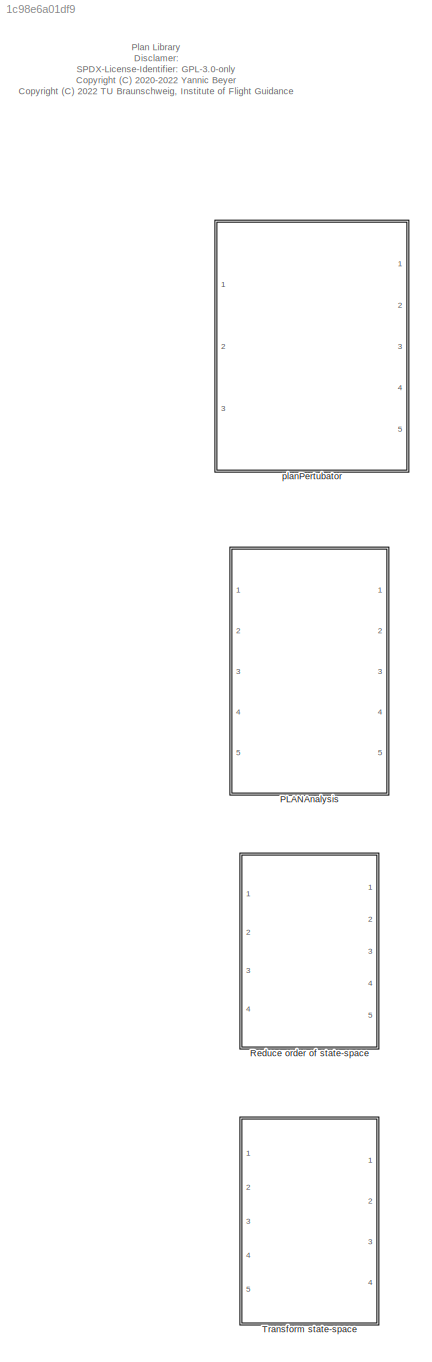
MODEL slx_1c98e6a01df9
KIND library
CONFIG AbsTol = auto
CONFIG EnableMultiTasking = off
CONFIG FixedStep = auto
CONFIG MaxStep = auto
CONFIG MinStep = auto
CONFIG RelTol = 1e-3
CONFIG SampleTimeConstraint = Unconstrained
CONFIG Solver = VariableStepAuto
CONFIG SolverName = VariableStepAuto
CONFIG StartTime = 0.0
CONFIG StopTime = 10.0
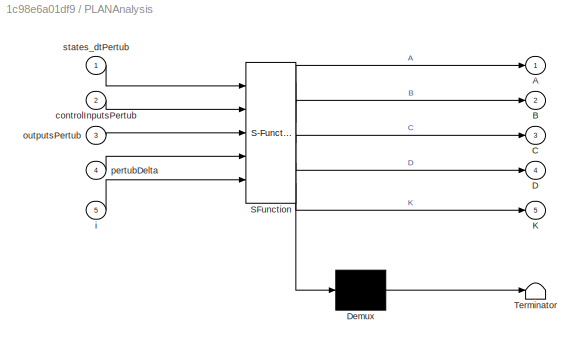
BLOCK [SubSystem] PLANAnalysis
  ErrorFcn = Stateflow.Translate.translate
  PermitHierarchicalResolution = ExplicitOnly
  Ports = [5, 5]
  RequestExecContextInheritance = off
  SFBlockType = MATLAB Function
  SystemSampleTime = 1/400
  TreatAsAtomicUnit = on
BLOCK [Demux] PLANAnalysis/ Demux 
  Outputs = 1
  Ports = [1, 1]
BLOCK [S-Function] PLANAnalysis/ SFunction 
  EnableBusSupport = on
  FunctionName = sf_sfun
  PortCounts = [5 6]
  Ports = [5, 6]
  SFcnIsStateOwnerBlock = off
  SFunctionDeploymentMode = off
  Tag = Stateflow S-Function plan_lib 2
BLOCK [Terminator] PLANAnalysis/ Terminator 
BLOCK [Outport] PLANAnalysis/A
  IconDisplay = Port number
BLOCK [Outport] PLANAnalysis/B
  IconDisplay = Port number
  Port = 2
BLOCK [Outport] PLANAnalysis/C
  IconDisplay = Port number
  Port = 3
BLOCK [Outport] PLANAnalysis/D
  IconDisplay = Port number
  Port = 4
BLOCK [Outport] PLANAnalysis/K
  IconDisplay = Port number
  Port = 5
BLOCK [Inport] PLANAnalysis/controlInputsPertub
  IconDisplay = Port number
  Port = 2
BLOCK [Inport] PLANAnalysis/i
  IconDisplay = Port number
  Port = 5
BLOCK [Inport] PLANAnalysis/outputsPertub
  IconDisplay = Port number
  Port = 3
BLOCK [Inport] PLANAnalysis/pertubDelta
  IconDisplay = Port number
  Port = 4
BLOCK [Inport] PLANAnalysis/states_dtPertub
  IconDisplay = Port number
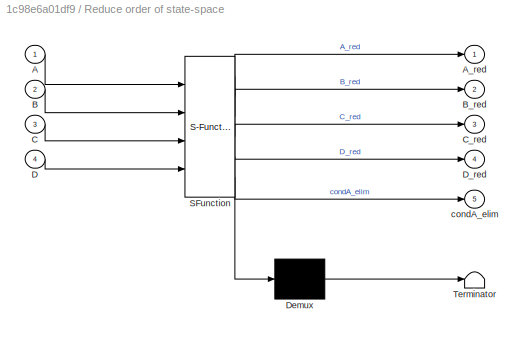
BLOCK [SubSystem] Reduce order of state-space
  ErrorFcn = Stateflow.Translate.translate
  PermitHierarchicalResolution = ExplicitOnly
  Ports = [4, 5]
  RequestExecContextInheritance = off
  SFBlockType = MATLAB Function
  TreatAsAtomicUnit = on
BLOCK [Demux] Reduce order of state-space/ Demux 
  Outputs = 1
  Ports = [1, 1]
BLOCK [S-Function] Reduce order of state-space/ SFunction 
  EnableBusSupport = off
  FunctionName = sf_sfun
  Parameters = elim
  PortCounts = [4 6]
  Ports = [4, 6]
  SFcnIsStateOwnerBlock = off
  SFunctionDeploymentMode = off
  Tag = Stateflow S-Function plan_lib 1
BLOCK [Terminator] Reduce order of state-space/ Terminator 
BLOCK [Inport] Reduce order of state-space/A
  IconDisplay = Port number
BLOCK [Outport] Reduce order of state-space/A_red
  IconDisplay = Port number
BLOCK [Inport] Reduce order of state-space/B
  IconDisplay = Port number
  Port = 2
BLOCK [Outport] Reduce order of state-space/B_red
  IconDisplay = Port number
  Port = 2
BLOCK [Inport] Reduce order of state-space/C
  IconDisplay = Port number
  Port = 3
BLOCK [Outport] Reduce order of state-space/C_red
  IconDisplay = Port number
  Port = 3
BLOCK [Inport] Reduce order of state-space/D
  IconDisplay = Port number
  Port = 4
BLOCK [Outport] Reduce order of state-space/D_red
  IconDisplay = Port number
  Port = 4
BLOCK [Outport] Reduce order of state-space/condA_elim
  IconDisplay = Port number
  Port = 5
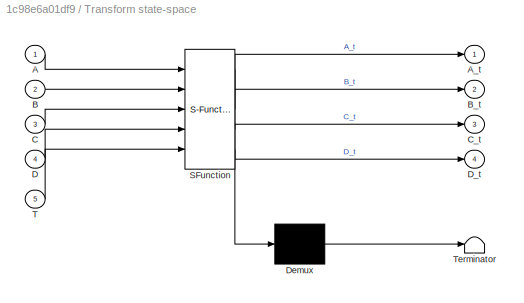
BLOCK [SubSystem] Transform state-space
  ErrorFcn = Stateflow.Translate.translate
  PermitHierarchicalResolution = ExplicitOnly
  Ports = [5, 4]
  RequestExecContextInheritance = off
  SFBlockType = MATLAB Function
  TreatAsAtomicUnit = on
BLOCK [Demux] Transform state-space/ Demux 
  Outputs = 1
  Ports = [1, 1]
BLOCK [S-Function] Transform state-space/ SFunction 
  EnableBusSupport = off
  FunctionName = sf_sfun
  PortCounts = [5 5]
  Ports = [5, 5]
  SFcnIsStateOwnerBlock = off
  SFunctionDeploymentMode = off
  Tag = Stateflow S-Function plan_lib 3
BLOCK [Terminator] Transform state-space/ Terminator 
BLOCK [Inport] Transform state-space/A
  IconDisplay = Port number
BLOCK [Outport] Transform state-space/A_t
  IconDisplay = Port number
BLOCK [Inport] Transform state-space/B
  IconDisplay = Port number
  Port = 2
BLOCK [Outport] Transform state-space/B_t
  IconDisplay = Port number
  Port = 2
BLOCK [Inport] Transform state-space/C
  IconDisplay = Port number
  Port = 3
BLOCK [Outport] Transform state-space/C_t
  IconDisplay = Port number
  Port = 3
BLOCK [Inport] Transform state-space/D
  IconDisplay = Port number
  Port = 4
BLOCK [Outport] Transform state-space/D_t
  IconDisplay = Port number
  Port = 4
BLOCK [Inport] Transform state-space/T
  IconDisplay = Port number
  Port = 5
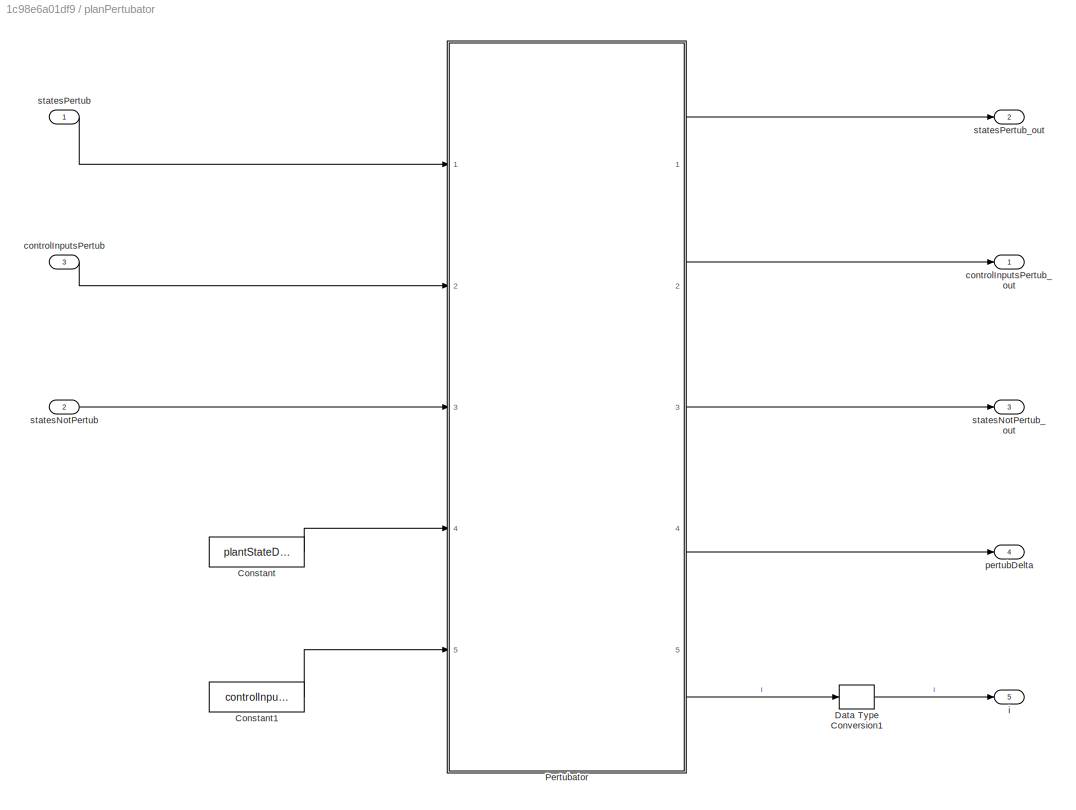
BLOCK [SubSystem] planPertubator
  Ports = [3, 5]
  RequestExecContextInheritance = off
BLOCK [Constant] planPertubator/Constant
  OutDataTypeStr = Bus: integratorBus
  SampleTime = -1
  Value = plantStateDelta
BLOCK [Constant] planPertubator/Constant1
  OutDataTypeStr = Bus: controlInputsBus
  SampleTime = -1
  Value = controlInputsDelta
BLOCK [DataTypeConversion] planPertubator/Data Type Conversion1
  OutDataTypeStr = uint32
  RndMeth = Floor
  SaturateOnIntegerOverflow = off
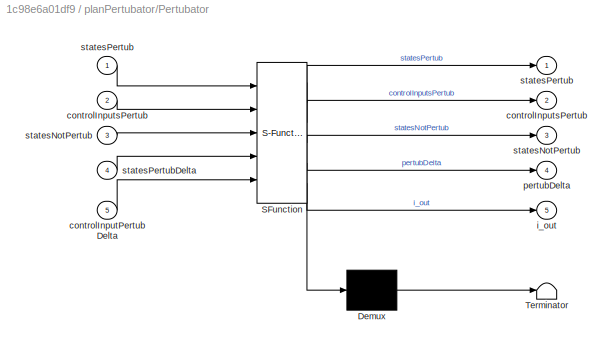
BLOCK [SubSystem] planPertubator/Pertubator
  ErrorFcn = Stateflow.Translate.translate
  PermitHierarchicalResolution = ExplicitOnly
  Ports = [5, 5]
  RequestExecContextInheritance = off
  SFBlockType = MATLAB Function
  SystemSampleTime = 1/400
  TreatAsAtomicUnit = on
BLOCK [Demux] planPertubator/Pertubator/ Demux 
  Outputs = 1
  Ports = [1, 1]
BLOCK [S-Function] planPertubator/Pertubator/ SFunction 
  EnableBusSupport = on
  FunctionName = sf_sfun
  PortCounts = [5 6]
  Ports = [5, 6]
  SFcnIsStateOwnerBlock = off
  SFunctionDeploymentMode = off
  Tag = Stateflow S-Function plan_lib 37
BLOCK [Terminator] planPertubator/Pertubator/ Terminator 
BLOCK [Inport] planPertubator/Pertubator/controlInputPertubDelta
  IconDisplay = Port number
  Port = 5
BLOCK [Outport] planPertubator/Pertubator/controlInputsPertub
  IconDisplay = Port number
  Port = 2
BLOCK [Inport] planPertubator/Pertubator/controlInputsPertub 
  IconDisplay = Port number
  Port = 2
BLOCK [Outport] planPertubator/Pertubator/i_out
  IconDisplay = Port number
  Port = 5
BLOCK [Outport] planPertubator/Pertubator/pertubDelta
  IconDisplay = Port number
  Port = 4
BLOCK [Outport] planPertubator/Pertubator/statesNotPertub
  IconDisplay = Port number
  Port = 3
BLOCK [Inport] planPertubator/Pertubator/statesNotPertub 
  IconDisplay = Port number
  Port = 3
BLOCK [Outport] planPertubator/Pertubator/statesPertub
  IconDisplay = Port number
BLOCK [Inport] planPertubator/Pertubator/statesPertub 
  IconDisplay = Port number
BLOCK [Inport] planPertubator/Pertubator/statesPertubDelta
  IconDisplay = Port number
  Port = 4
BLOCK [Inport] planPertubator/controlInputsPertub
  IconDisplay = Port number
  Port = 3
BLOCK [Outport] planPertubator/controlInputsPertub_out
  IconDisplay = Port number
BLOCK [Outport] planPertubator/i
  IconDisplay = Port number
  Port = 5
BLOCK [Outport] planPertubator/pertubDelta
  IconDisplay = Port number
  Port = 4
BLOCK [Inport] planPertubator/statesNotPertub
  IconDisplay = Port number
  Port = 2
BLOCK [Outport] planPertubator/statesNotPertub_out
  IconDisplay = Port number
  Port = 3
BLOCK [Inport] planPertubator/statesPertub
  IconDisplay = Port number
BLOCK [Outport] planPertubator/statesPertub_out
  IconDisplay = Port number
  Port = 2
ANNOTATION (root): Plan Library Disclamer: SPDX-License-Identifier: GPL-3.0-only <copyright redacted>
LINE planPertubator/Constant1:1 -> planPertubator/Pertubator:5
LINE planPertubator/Constant:1 -> planPertubator/Pertubator:4
LINE planPertubator/Data Type Conversion1:1 -> planPertubator/i:1
LINE planPertubator/Pertubator:1 -> planPertubator/statesPertub_out:1
LINE planPertubator/Pertubator:2 -> planPertubator/controlInputsPertub_out:1
LINE planPertubator/Pertubator:3 -> planPertubator/statesNotPertub_out:1
LINE planPertubator/Pertubator:4 -> planPertubator/pertubDelta:1
LINE planPertubator/Pertubator:5 -> planPertubator/Data Type Conversion1:1
LINE planPertubator/controlInputsPertub:1 -> planPertubator/Pertubator:2
LINE planPertubator/statesNotPertub:1 -> planPertubator/Pertubator:3
LINE planPertubator/statesPertub:1 -> planPertubator/Pertubator:1
CHART Reduce order of state-space states=1 transitions=1
  STATE_LABEL 'eML_blk_kernel()'
  STATE_LABEL 'SCRIPT:\nfunction [ A_red, B_red, C_red, D_red, condA_elim ] = fcn( ...\n    A, B, C, D, elim ) %#codegen\n[ A_red, B_red, C_red, D_red, condA_elim ] = modredEmb2( ...\n    A, B, C, D, elim );\nend'
CHART PLANAnalysis states=1 transitions=1
  STATE_LABEL 'eML_blk_kernel()'
  STATE_LABEL 'SCRIPT:\nfunction [ A, B, C, D, K ] = fcn( states_dtPertub, controlInputsPertub, ...\n    outputsPertub, pertubDelta, i ) %#codegen\n[ A, B, C, D, K ] = planAnalysis( states_dtPertub, controlInputsPertub, ...\n    outputsPertub, pertubDelta, i );\nend'
CHART Transform state-space states=1 transitions=1
  STATE_LABEL 'eML_blk_kernel()'
  STATE_LABEL 'SCRIPT:\nfunction [ A_t, B_t, C_t, D_t ] = fcn( A, B, C, D, T ) %#codegen\n[ A_t, B_t, C_t, D_t ] = transformStateSpace( A, B, C, D, T );\nend\n\n'
CHART planPertubator/Pertubator states=1 transitions=1
  STATE_LABEL 'eML_blk_kernel()'
  STATE_LABEL 'SCRIPT:\nfunction [ statesPertub, controlInputsPertub, statesNotPertub, ...\n    pertubDelta, i_out ]...\n    = pertubator( statesPertub, controlInputsPertub, statesNotPertub, ...\n    statesPertubDelta, controlInputPertubDelta ) %#codegen\n[ statesPertub, controlInputsPertub, statesNotPertub, ...\n    pertubDelta, i_out ]...\n    = planPertubator( statesPertub, controlInputsPertub, statesNotPertub, ...\n...<+53ch>'
